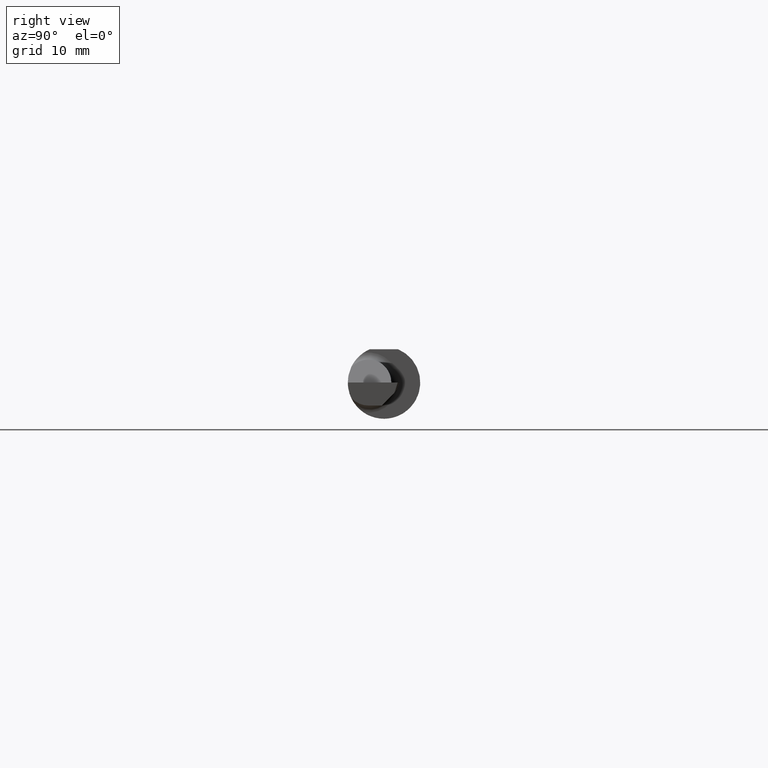
[diagram: clean part render]
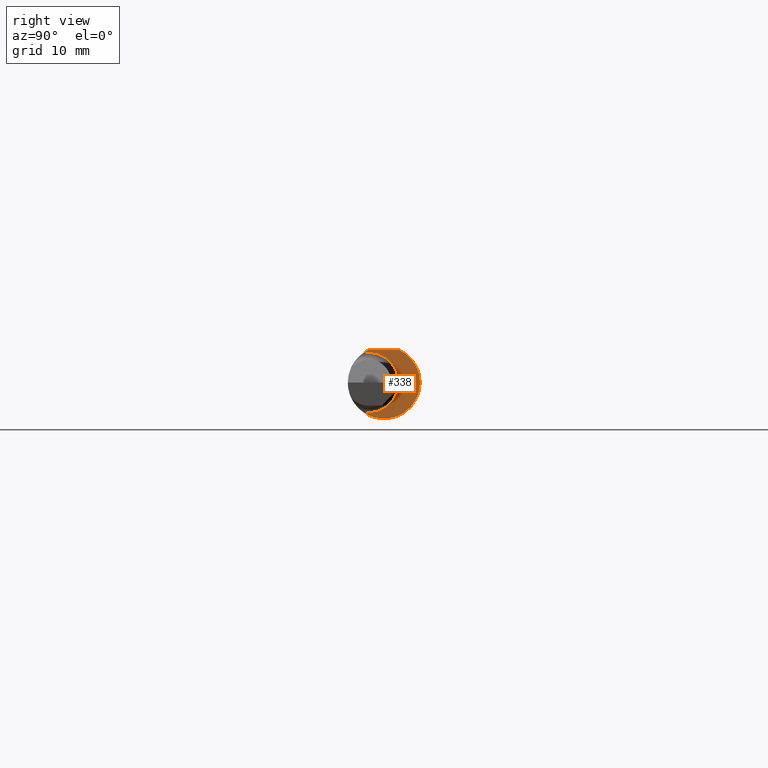
[diagram: same view with one face highlighted and labeled with its STEP entity id]
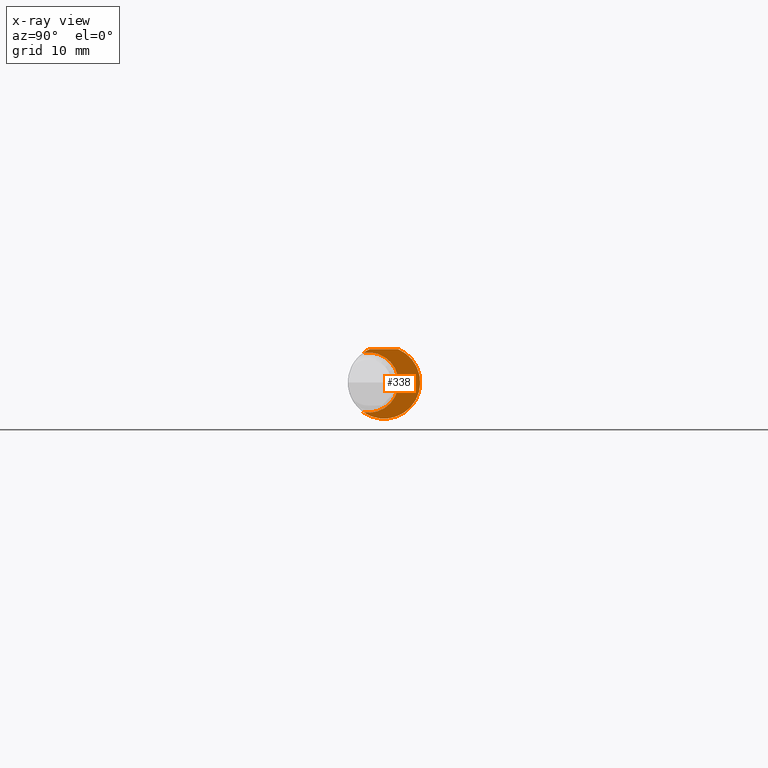
[diagram: x-ray of the same camera — body ghosted, the highlighted face saturated]
A machine part, right view. The second image highlights one B-rep face of the part: STEP entity #338.
The next image is the same camera in x-ray: the body ghosted, the highlighted face saturated — about 0% of this face is hidden behind the body in this view.
In plain terms, the highlighted planar face has unit normal (1, -0, 0).
Its self-contained STEP definition (entity closure, byte-faithful):
#3 = VERTEX_POINT ( 'NONE', #16 ) ;
#13 = DIRECTION ( 'NONE',  ( 1.000000000000000000, -3.414809992080329023E-18, 0.0000000000000000000 ) ) ;
#16 = CARTESIAN_POINT ( 'NONE',  ( 1.560000000000000275, -0.07089166666666688044, 0.1027710761704001691 ) ) ;
#37 = CARTESIAN_POINT ( 'NONE',  ( 1.560000000000000275, 0.1748500000000000054, 0.1148500000000000076 ) ) ;
#44 = EDGE_CURVE ( 'NONE', #618, #464, #177, .T. ) ;
#50 = CARTESIAN_POINT ( 'NONE',  ( 1.560000000000000275, -0.07089166666666688044, -0.1027710761704001691 ) ) ;
#52 = CARTESIAN_POINT ( 'NONE',  ( 1.560000000000000275, -0.04895916665957457392, 0.1148500000000000215 ) ) ;
#109 = ORIENTED_EDGE ( 'NONE', *, *, #286, .T. ) ;
#126 = DIRECTION ( 'NONE',  ( 0.0000000000000000000, -1.000000000000000000, 0.0000000000000000000 ) ) ;
#131 = FACE_OUTER_BOUND ( 'NONE', #641, .T. ) ;
#155 = DIRECTION ( 'NONE',  ( 0.0000000000000000000, 1.000000000000000000, 0.0000000000000000000 ) ) ;
#177 = CIRCLE ( 'NONE', #484, 0.1248500000000000026 ) ;
#213 = AXIS2_PLACEMENT_3D ( 'NONE', #545, #590, #595 ) ;
#231 = CARTESIAN_POINT ( 'NONE',  ( 1.560000000000000275, 0.04895916665957456004, 0.1148500000000000076 ) ) ;
#252 = AXIS2_PLACEMENT_3D ( 'NONE', #404, #487, #126 ) ;
#286 = EDGE_CURVE ( 'NONE', #3, #618, #530, .T. ) ;
#294 = CARTESIAN_POINT ( 'NONE',  ( 1.560000000000000275, 0.0000000000000000000, 0.0000000000000000000 ) ) ;
#338 = ADVANCED_FACE ( 'NONE', ( #131 ), #353, .T. ) ;
#353 = PLANE ( 'NONE',  #213 ) ;
#381 = ORIENTED_EDGE ( 'NONE', *, *, #44, .T. ) ;
#386 = AXIS2_PLACEMENT_3D ( 'NONE', #294, #461, #155 ) ;
#391 = DIRECTION ( 'NONE',  ( -3.414809992080329023E-18, -1.000000000000000000, 4.882484975808304553E-17 ) ) ;
#394 = EDGE_CURVE ( 'NONE', #464, #479, #526, .T. ) ;
#404 = CARTESIAN_POINT ( 'NONE',  ( 1.560000000000000275, -0.05399999999999999939, 0.0000000000000000000 ) ) ;
#449 = VECTOR ( 'NONE', #391, 39.37007874015748143 ) ;
#461 = DIRECTION ( 'NONE',  ( 1.000000000000000000, -3.414809992080329023E-18, 0.0000000000000000000 ) ) ;
#464 = VERTEX_POINT ( 'NONE', #231 ) ;
#479 = VERTEX_POINT ( 'NONE', #52 ) ;
#484 = AXIS2_PLACEMENT_3D ( 'NONE', #515, #13, #626 ) ;
#487 = DIRECTION ( 'NONE',  ( -1.000000000000000000, 3.414809992080329023E-18, -0.0000000000000000000 ) ) ;
#494 = ORIENTED_EDGE ( 'NONE', *, *, #568, .T. ) ;
#515 = CARTESIAN_POINT ( 'NONE',  ( 1.560000000000000275, 0.0000000000000000000, 0.0000000000000000000 ) ) ;
#526 = LINE ( 'NONE', #37, #449 ) ;
#527 = CIRCLE ( 'NONE', #386, 0.1248500000000000026 ) ;
#530 = CIRCLE ( 'NONE', #252, 0.1041499999999998954 ) ;
#545 = CARTESIAN_POINT ( 'NONE',  ( 1.560000000000000275, 0.05014999999999990993, 0.0000000000000000000 ) ) ;
#568 = EDGE_CURVE ( 'NONE', #479, #3, #527, .T. ) ;
#590 = DIRECTION ( 'NONE',  ( 1.000000000000000000, -3.414809992080329023E-18, 0.0000000000000000000 ) ) ;
#595 = DIRECTION ( 'NONE',  ( 3.414809992080329023E-18, 1.000000000000000000, 0.0000000000000000000 ) ) ;
#609 = ORIENTED_EDGE ( 'NONE', *, *, #394, .T. ) ;
#618 = VERTEX_POINT ( 'NONE', #50 ) ;
#626 = DIRECTION ( 'NONE',  ( 0.0000000000000000000, 1.000000000000000000, 0.0000000000000000000 ) ) ;
#641 = EDGE_LOOP ( 'NONE', ( #381, #609, #494, #109 ) ) ;